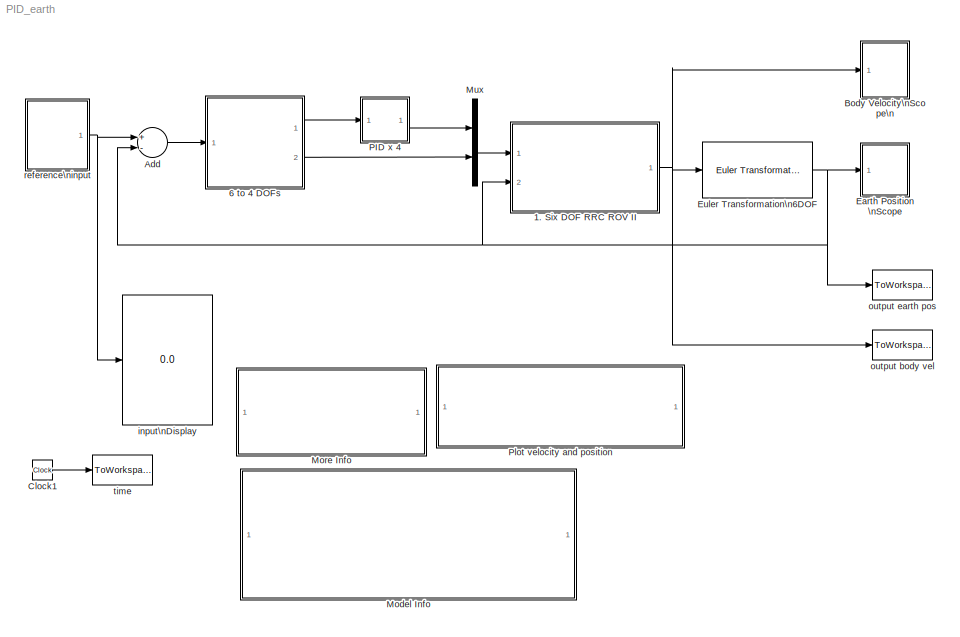
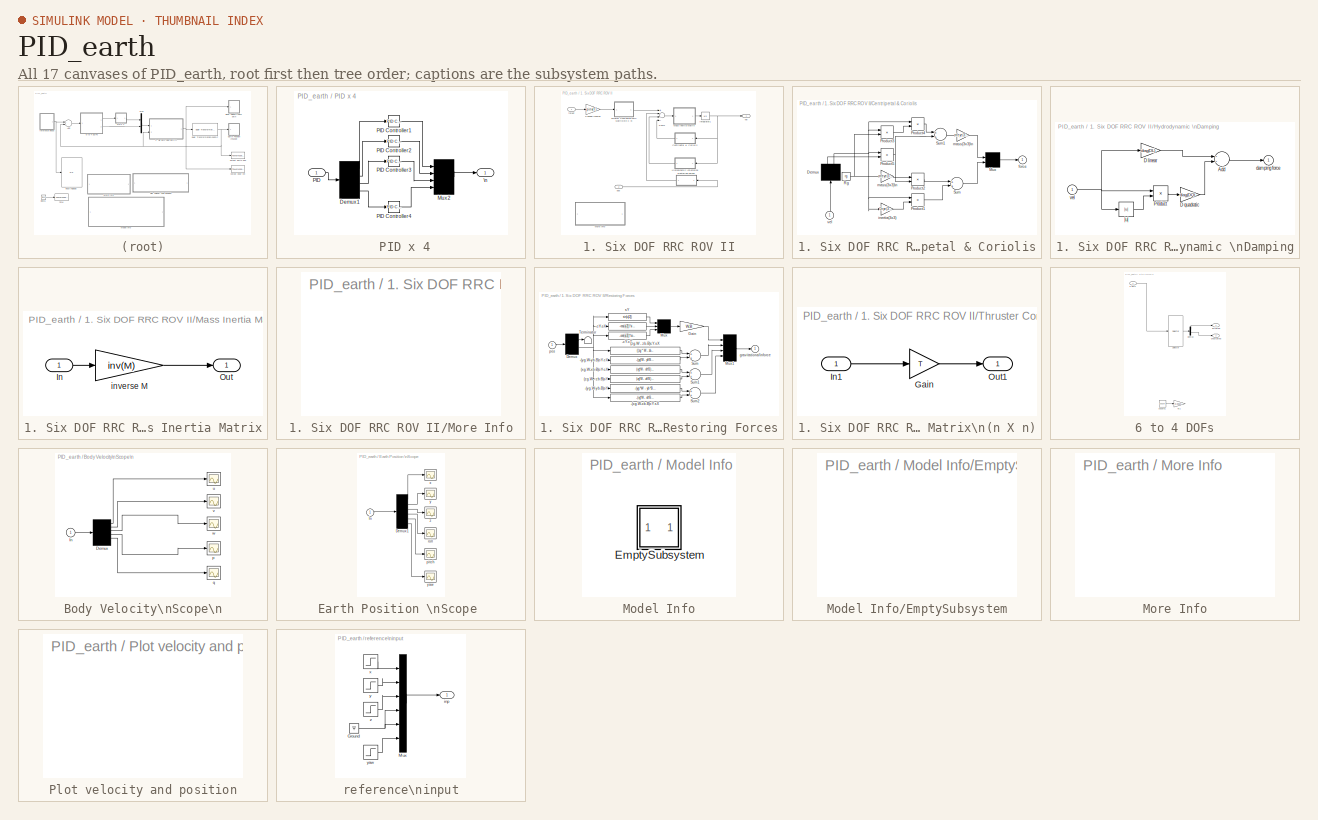
[diagram: thumbnail index - all 17 canvases of the model, root first then tree order]
MODEL PID_earth
KIND model
BLOCK [SubSystem]  PID x 4
  AncestorBlock = rov_design_analysis/ROV Controller\nDesign\nApplications/8. PID x 4
  MinAlgLoopOccurrences = off
  Ports = [1, 1]
  RTWSystemCode = Auto
  TreatAsAtomicUnit = off
BLOCK [Demux]  PID x 4/Demux1
  Ports = [1, 4]
BLOCK [Mux]  PID x 4/Mux2
  Ports = [4, 1]
BLOCK [Inport]  PID x 4/PID
  IconDisplay = Port number
  LatchInput = off
  Port = 1
BLOCK [Reference]  PID x 4/PID Controller1  REF=simulink_extras/Additional\nLinear/PID Controller
  D = 1
  I = 2
  P = 11
  Ports = [1, 1]
  ShowPortLabels = on
  SourceBlock = simulink_extras/Additional\nLinear/PID Controller
  SourceType = PID Controller
BLOCK [Reference]  PID x 4/PID Controller2  REF=simulink_extras/Additional\nLinear/PID Controller
  D = 1
  I = 4
  P = 11
  Ports = [1, 1]
  ShowPortLabels = on
  SourceBlock = simulink_extras/Additional\nLinear/PID Controller
  SourceType = PID Controller
BLOCK [Reference]  PID x 4/PID Controller3  REF=simulink_extras/Additional\nLinear/PID Controller
  D = 2
  I = 1
  P = 9
  Ports = [1, 1]
  ShowPortLabels = on
  SourceBlock = simulink_extras/Additional\nLinear/PID Controller
  SourceType = PID Controller
BLOCK [Reference]  PID x 4/PID Controller4  REF=simulink_extras/Additional\nLinear/PID Controller
  D = 1
  I = 2
  P = 1
  Ports = [1, 1]
  ShowPortLabels = on
  SourceBlock = simulink_extras/Additional\nLinear/PID Controller
  SourceType = PID Controller
BLOCK [Outport]  PID x 4/\n
  BusOutputAsStruct = off
  IconDisplay = Port number
BLOCK [SubSystem] 1. Six DOF RRC ROV II
  AncestorBlock = rov_design_analysis/ROV\nModels/1. Six DOF RRC ROV II
  MaskDisplay = disp('ROV')\nimage(imread('/rov_design_analysis/fig/ROVRRC2.jpg'));\ncolor('black');port_label('input',1,'thrust')\ncolor('black');port_label('input',2,'pos')\ncolor('black');port_label('output',1,'vel')
  MaskIconFrame = on
  MaskIconOpaque = off
  MaskIconRotate = none
  MaskIconUnits = autoscale
  MinAlgLoopOccurrences = off
  Ports = [2, 1]
  RTWSystemCode = Auto
  TreatAsAtomicUnit = off
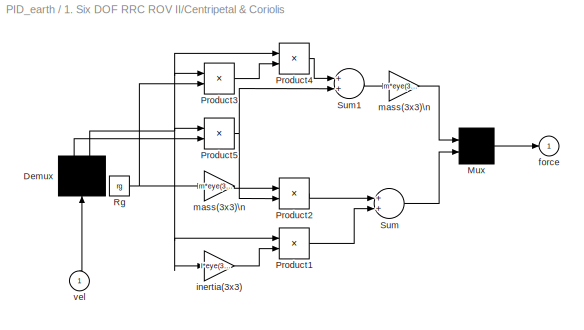
BLOCK [SubSystem] 1. Six DOF RRC ROV II/Centripetal & Coriolis
  MaskDisplay = disp('Coriolis \\n& Centrpetal \\nMatrix')
  MaskIconFrame = on
  MaskIconOpaque = on
  MaskIconRotate = none
  MaskIconUnits = autoscale
  MinAlgLoopOccurrences = off
  Ports = [1, 1]
  RTWSystemCode = Auto
  TreatAsAtomicUnit = off
BLOCK [Demux] 1. Six DOF RRC ROV II/Centripetal & Coriolis/Demux
  Outputs = 2
  Ports = [1, 2]
BLOCK [Mux] 1. Six DOF RRC ROV II/Centripetal & Coriolis/Mux
  Inputs = 2
  Ports = [2, 1]
BLOCK [Product] 1. Six DOF RRC ROV II/Centripetal & Coriolis/Product1
  Ports = [2, 1]
BLOCK [Product] 1. Six DOF RRC ROV II/Centripetal & Coriolis/Product2
  Ports = [2, 1]
BLOCK [Product] 1. Six DOF RRC ROV II/Centripetal & Coriolis/Product3
  Ports = [2, 1]
BLOCK [Product] 1. Six DOF RRC ROV II/Centripetal & Coriolis/Product4
  Ports = [2, 1]
BLOCK [Product] 1. Six DOF RRC ROV II/Centripetal & Coriolis/Product5
  Ports = [2, 1]
BLOCK [Constant] 1. Six DOF RRC ROV II/Centripetal & Coriolis/Rg
  Value = rg
BLOCK [Sum] 1. Six DOF RRC ROV II/Centripetal & Coriolis/Sum
  Ports = [2, 1]
BLOCK [Sum] 1. Six DOF RRC ROV II/Centripetal & Coriolis/Sum1
  Ports = [2, 1]
BLOCK [Outport] 1. Six DOF RRC ROV II/Centripetal & Coriolis/force
  BusOutputAsStruct = off
  IconDisplay = Port number
  InitialOutput = 0
BLOCK [Gain] 1. Six DOF RRC ROV II/Centripetal & Coriolis/inertia(3x3)
  Gain = I*eye(3)+[Xudot 0 0;0 Yvdot 0;0 0 Zwdot]
  Multiplication = Matrix(K*u)
BLOCK [Gain] 1. Six DOF RRC ROV II/Centripetal & Coriolis/mass(3x3)\n
  Gain = m*eye(3)+[Xudot 0 0;0 Yvdot 0;0 0 Zwdot]
  Multiplication = Matrix(K*u)
BLOCK [Gain] 1. Six DOF RRC ROV II/Centripetal & Coriolis/mass(3x3)\n  
  Gain = m*eye(3)+[Xudot 0 0;0 Yvdot 0;0 0 Zwdot]
  Multiplication = Matrix(K*u)
BLOCK [Inport] 1. Six DOF RRC ROV II/Centripetal & Coriolis/vel
  IconDisplay = Port number
  LatchInput = off
  Port = 1
BLOCK [SubSystem] 1. Six DOF RRC ROV II/Hydrodynamic \nDamping
  MaskDisplay = disp('Hydrodynamic \\nDamping')
  MaskIconFrame = on
  MaskIconOpaque = on
  MaskIconRotate = none
  MaskIconUnits = autoscale
  MinAlgLoopOccurrences = off
  Ports = [1, 1]
  RTWSystemCode = Auto
  TreatAsAtomicUnit = off
BLOCK [Sum] 1. Six DOF RRC ROV II/Hydrodynamic \nDamping/Add
  InputSameDT = off
  Inputs = --
  OutDataTypeMode = Inherit via internal rule
  OutScaling = 2^-10
  Ports = [2, 1]
  SaturateOnIntegerOverflow = off
BLOCK [Gain] 1. Six DOF RRC ROV II/Hydrodynamic \nDamping/D linear
  Gain = diag(DL)
BLOCK [Gain] 1. Six DOF RRC ROV II/Hydrodynamic \nDamping/D quadratic
  Gain = diag(DQ)
BLOCK [Product] 1. Six DOF RRC ROV II/Hydrodynamic \nDamping/Product
  Ports = [2, 1]
BLOCK [Outport] 1. Six DOF RRC ROV II/Hydrodynamic \nDamping/damping force
  BusOutputAsStruct = off
  IconDisplay = Port number
  InitialOutput = 0
BLOCK [Inport] 1. Six DOF RRC ROV II/Hydrodynamic \nDamping/vel
  IconDisplay = Port number
  LatchInput = off
  Port = 1
BLOCK [Abs] 1. Six DOF RRC ROV II/Hydrodynamic \nDamping/|u|
BLOCK [Integrator] 1. Six DOF RRC ROV II/Integrator1
  Ports = [1, 1]
BLOCK [SubSystem] 1. Six DOF RRC ROV II/Mass Inertia Matrix
  MaskDisplay = disp('Inverse Mass \\n Inertia \\n Matrix')
  MaskIconFrame = on
  MaskIconOpaque = on
  MaskIconRotate = none
  MaskIconUnits = autoscale
  MinAlgLoopOccurrences = off
  Ports = [1, 1]
  RTWSystemCode = Auto
  TreatAsAtomicUnit = off
BLOCK [Inport] 1. Six DOF RRC ROV II/Mass Inertia Matrix/In
  IconDisplay = Port number
  LatchInput = off
  Port = 1
BLOCK [Outport] 1. Six DOF RRC ROV II/Mass Inertia Matrix/Out
  BusOutputAsStruct = off
  IconDisplay = Port number
BLOCK [Gain] 1. Six DOF RRC ROV II/Mass Inertia Matrix/inverse M
  Gain = inv(M)
  Multiplication = Matrix(K*u)
BLOCK [SubSystem] 1. Six DOF RRC ROV II/More Info
  MaskDisplay = disp('Double-click here to load the\\n RRCROV2.mat')
  MaskIconFrame = on
  MaskIconOpaque = on
  MaskIconRotate = none
  MaskIconUnits = autoscale
  MinAlgLoopOccurrences = off
  OpenFcn = cd <path> ;\nload ROVRRC2;
  Ports = []
  RTWSystemCode = Auto
  TreatAsAtomicUnit = off
BLOCK [Gain] 1. Six DOF RRC ROV II/Pseudo Inverse
  Gain = pinv(T)
  Multiplication = Matrix(K*u)
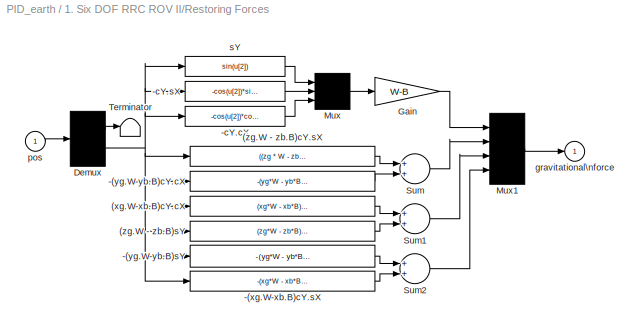
BLOCK [SubSystem] 1. Six DOF RRC ROV II/Restoring Forces
  MaskDisplay = disp('Restoring\\nForce')
  MaskIconFrame = on
  MaskIconOpaque = on
  MaskIconRotate = none
  MaskIconUnits = autoscale
  MinAlgLoopOccurrences = off
  Ports = [1, 1]
  RTWSystemCode = Auto
  TreatAsAtomicUnit = off
BLOCK [Fcn] 1. Six DOF RRC ROV II/Restoring Forces/(xg.W-xb.B)cY.cX
  Expr = (xg*W - xb*B)*cos(u[2])*cos(u[1])
BLOCK [Fcn] 1. Six DOF RRC ROV II/Restoring Forces/(zg.W - zb.B)cY.sX
  Expr = ((zg * W - zb * B) * cos(u[2])) * sin(u[1])
BLOCK [Fcn] 1. Six DOF RRC ROV II/Restoring Forces/(zg.W - zb.B)sY
  Expr = (zg*W - zb*B)*sin(u[2])
BLOCK [Fcn] 1. Six DOF RRC ROV II/Restoring Forces/-(xg.W-xb.B)cY.sX
  Expr = -(xg*W - xb*B)*cos(u[2])*sin(u[1])
BLOCK [Fcn] 1. Six DOF RRC ROV II/Restoring Forces/-(yg.W-yb.B)cY.cX
  Expr = -(yg*W - yb*B)*cos(u[2])*cos(u[1])
BLOCK [Fcn] 1. Six DOF RRC ROV II/Restoring Forces/-(yg.W-yb.B)sY
  Expr = -(yg*W - yb*B)*sin(u[2])
BLOCK [Fcn] 1. Six DOF RRC ROV II/Restoring Forces/-cY.cX
  Expr = -cos(u[2])*cos(u[1])
BLOCK [Fcn] 1. Six DOF RRC ROV II/Restoring Forces/-cY.sX
  Expr = -cos(u[2])*sin(u[1])
BLOCK [Demux] 1. Six DOF RRC ROV II/Restoring Forces/Demux
  Outputs = 2
  Ports = [1, 2]
BLOCK [Gain] 1. Six DOF RRC ROV II/Restoring Forces/Gain
  Gain = W-B
BLOCK [Mux] 1. Six DOF RRC ROV II/Restoring Forces/Mux
  Inputs = 3
  Ports = [3, 1]
BLOCK [Mux] 1. Six DOF RRC ROV II/Restoring Forces/Mux1
  Ports = [4, 1]
BLOCK [Sum] 1. Six DOF RRC ROV II/Restoring Forces/Sum
  Ports = [2, 1]
BLOCK [Sum] 1. Six DOF RRC ROV II/Restoring Forces/Sum1
  Ports = [2, 1]
BLOCK [Sum] 1. Six DOF RRC ROV II/Restoring Forces/Sum2
  Ports = [2, 1]
BLOCK [Terminator] 1. Six DOF RRC ROV II/Restoring Forces/Terminator
BLOCK [Outport] 1. Six DOF RRC ROV II/Restoring Forces/gravitational\nforce
  BusOutputAsStruct = off
  IconDisplay = Port number
  InitialOutput = 0
BLOCK [Inport] 1. Six DOF RRC ROV II/Restoring Forces/pos
  IconDisplay = Port number
  LatchInput = off
  Port = 1
BLOCK [Fcn] 1. Six DOF RRC ROV II/Restoring Forces/sY
  Expr = sin(u[2])
BLOCK [Sum] 1. Six DOF RRC ROV II/Sum1
  InputSameDT = off
  Inputs = +---
  OutDataTypeMode = double
  Ports = [4, 1]
BLOCK [SubSystem] 1. Six DOF RRC ROV II/Thruster Configuration\n Matrix\n(n X n)
  AncestorBlock = rov_design_analysis/ROV\nModels/4.  Thruster Configuration Matrix\n(n X n)
  MaskDescription = Provide the thruster configuration matrix using summation of forces and moment about the vehicle's C.G.
  MaskDisplay = disp('Thruster \\n Configuration')
  MaskEnableString = on
  MaskIconFrame = on
  MaskIconOpaque = on
  MaskIconRotate = none
  MaskIconUnits = autoscale
  MaskPromptString = Insert Thruster Configuration Matrix
  MaskStyleString = edit
  MaskToolTipString = on
  MaskTunableValueString = on
  MaskType = Thruster Configuration Matrix
  MaskValueString = T
  MaskVariables = T=@1;
  MaskVisibilityString = on
  MinAlgLoopOccurrences = off
  Ports = [1, 1]
  RTWSystemCode = Auto
  ShowPortLabels = off
  TreatAsAtomicUnit = off
BLOCK [Gain] 1. Six DOF RRC ROV II/Thruster Configuration\n Matrix\n(n X n)/Gain
  Gain = T
  Multiplication = Matrix(K*u)
  OutDataTypeMode = Inherit via internal rule
  ParameterDataTypeMode = Inherit via internal rule
  SaturateOnIntegerOverflow = off
BLOCK [Inport] 1. Six DOF RRC ROV II/Thruster Configuration\n Matrix\n(n X n)/In1
  IconDisplay = Port number
  LatchInput = off
  Port = 1
BLOCK [Outport] 1. Six DOF RRC ROV II/Thruster Configuration\n Matrix\n(n X n)/Out1
  BusOutputAsStruct = off
  IconDisplay = Port number
BLOCK [Inport] 1. Six DOF RRC ROV II/pos 
  IconDisplay = Port number
  LatchInput = off
  Port = 2
BLOCK [Inport] 1. Six DOF RRC ROV II/thrust 
  IconDisplay = Port number
  LatchInput = off
  Port = 1
BLOCK [Outport] 1. Six DOF RRC ROV II/vel
  BusOutputAsStruct = off
  IconDisplay = Port number
BLOCK [SubSystem] 6 to 4 DOFs
  AncestorBlock = rov_design_analysis/Scope\nUtilities/6 to 4 DOFs
  MinAlgLoopOccurrences = off
  Ports = [1, 2]
  RTWSystemCode = Auto
  TreatAsAtomicUnit = off
BLOCK [Inport] 6 to 4 DOFs/6 DOF
  IconDisplay = Port number
  LatchInput = off
  Port = 1
BLOCK [Demux] 6 to 4 DOFs/Demux
  DisplayOption = bar
  Outputs = 2
  Ports = [1, 2]
BLOCK [Gain] 6 to 4 DOFs/Kt1
  Gain = 0.0013
BLOCK [Selector] 6 to 4 DOFs/Selector
  Elements = [1 2 3 6 4 5]
  InputPortWidth = 6
  Ports = [1, 1]
BLOCK [Outport] 6 to 4 DOFs/actuated
  BusOutputAsStruct = off
  IconDisplay = Port number
BLOCK [Math] 6 to 4 DOFs/square1
  Operator = square
  Ports = [1, 1]
BLOCK [Outport] 6 to 4 DOFs/unactuated
  BusOutputAsStruct = off
  IconDisplay = Port number
  Port = 2
BLOCK [Sum] Add
  InputSameDT = off
  Inputs = +-
  OutDataTypeMode = Inherit via internal rule
  OutScaling = 2^-10
  Ports = [2, 1]
  SaturateOnIntegerOverflow = off
BLOCK [SubSystem] Body Velocity\nScope\n
  AncestorBlock = rov_design_analysis/Utilities/Body Velocity\nScope\n
  MaskDisplay = disp('Body\\nVelocity\\nScope')
  MaskIconFrame = on
  MaskIconOpaque = on
  MaskIconRotate = none
  MaskIconUnits = autoscale
  MinAlgLoopOccurrences = off
  Ports = [1]
  RTWSystemCode = Auto
  TreatAsAtomicUnit = off
BLOCK [Demux] Body Velocity\nScope\n/Demux
  Outputs = 6
  Ports = [1, 6]
BLOCK [Inport] Body Velocity\nScope\n/In
  IconDisplay = Port number
  LatchInput = off
  Port = 1
BLOCK [Scope] Body Velocity\nScope\n/p
  DataFormat = Array
  NumInputPorts = 1
  Ports = [1]
  TickLabels = on
  YMax = 0.2
  YMin = -0.125
BLOCK [Scope] Body Velocity\nScope\n/q
  DataFormat = Array
  NumInputPorts = 1
  Ports = [1]
  TickLabels = on
  TimeRange = 200
  YMax = 0.15
  YMin = -0.05
BLOCK [Scope] Body Velocity\nScope\n/u
  DataFormat = Array
  NumInputPorts = 1
  Ports = [1]
  TickLabels = on
  TimeRange = 50
  YMax = 0.375
  YMin = -0.025
BLOCK [Scope] Body Velocity\nScope\n/v
  DataFormat = Array
  NumInputPorts = 1
  Ports = [1]
  TickLabels = on
  YMax = 0.1
  YMin = -0.02
BLOCK [Scope] Body Velocity\nScope\n/w
  DataFormat = Array
  NumInputPorts = 1
  Ports = [1]
  TickLabels = on
  TimeRange = 50
  YMax = 0.0375
  YMin = -0.0025
  ZoomMode = yonly
BLOCK [Clock] Clock1
  Decimation = 10
BLOCK [SubSystem] Earth Position \nScope 
  AncestorBlock = rov_design_analysis/Utilities/Earth Position \nScope
  MaskDisplay = disp('Earth\\nPosition\\nScope')
  MaskIconFrame = on
  MaskIconOpaque = on
  MaskIconRotate = none
  MaskIconUnits = autoscale
  MinAlgLoopOccurrences = off
  Ports = [1]
  RTWSystemCode = Auto
  TreatAsAtomicUnit = off
BLOCK [Demux] Earth Position \nScope /Demux1
  Outputs = 6
  Ports = [1, 6]
BLOCK [Inport] Earth Position \nScope /In
  IconDisplay = Port number
  LatchInput = off
  Port = 1
BLOCK [Scope] Earth Position \nScope /pitch
  DataFormat = Array
  NumInputPorts = 1
  Ports = [1]
  TickLabels = on
  YMax = 0.15
  YMin = -0.05
BLOCK [Scope] Earth Position \nScope /roll
  DataFormat = Array
  NumInputPorts = 1
  Ports = [1]
  TickLabels = on
  YMax = 0.2
  YMin = -0.125
BLOCK [Scope] Earth Position \nScope /x
  DataFormat = Array
  NumInputPorts = 1
  Ports = [1]
  TickLabels = on
  TimeRange = 50
  YMax = 0.375
  YMin = 0
BLOCK [Scope] Earth Position \nScope /y
  DataFormat = Array
  NumInputPorts = 1
  Ports = [1]
  TickLabels = on
  YMax = 0.175
  YMin = -0.15
BLOCK [Scope] Earth Position \nScope /yaw
  DataFormat = Array
  NumInputPorts = 1
  Ports = [1]
  TickLabels = on
  YMax = 1.75
  YMin = 0
BLOCK [Scope] Earth Position \nScope /z
  DataFormat = Array
  NumInputPorts = 1
  Ports = [1]
  TickLabels = on
  TimeRange = 50
  YMax = 0.0375
  YMin = -0.0025
  ZoomMode = yonly
BLOCK [Reference] Euler Transformation\n6DOF  REF=rov_design_analysis/Utilities/Euler Transformation\n6DOF
  Ports = [1, 1]
  ShowPortLabels = on
  SourceBlock = rov_design_analysis/Utilities/Euler Transformation\n6DOF
  SourceType = SubSystem
BLOCK [SubSystem] Model Info
  CopyFcn = slcm CopyBlock;
  DeleteFcn = slcm Cancel;
  InitFcn = slcm('UpdateAllCMBlocksInThisModelInit')
  LoadFcn = slcm LoadBlock;
  MaskCallbackString = ||||||||||||||||||||||||||||||
  MaskDescription = This block allows revision control information to be displayed within the model.
  MaskDisplay = text(str2num(LeftAlignmentValue), 0.5, MaskDisplayString, 'HorizontalAlignment', HorizontalTextAlignment)\n
  MaskEnableString = on,on,on,on,on,on,on,on,on,on,on,on,on,on,on,on,on,on,on,on,on,on,on,on,on,on,on,on,on,on,on
  MaskIconFrame = on
  MaskIconOpaque = on
  MaskIconRotate = none
  MaskIconUnits = normalized
  MaskPromptString = InitialSaveTempField|InitialBlockCM|BlockCM|Frame|SaveTempField|DisplayStringWithTags|MaskDisplayString|HorizontalTextAlignment|LeftAlignmentValue|SourceBlockDiagram|TagMaxNumber|CMTag1|CMTag2|CMTag3|CMTag4|CMTag5|CMTag6|CMTag7|CMTag8|CMTag9|CMTag10|CMTag11|CMTag12|CMTag13|CMTag14|CMTag15|CMTag16|CMTag17|CMTag18|CMTag19|CMTag20
  MaskSelfModifiable = on
  MaskStyleString = edit,edit,edit,edit,edit,edit,edit,edit,edit,edit,edit,edit,edit,edit,edit,edit,edit,edit,edit,edit,edit,edit,edit,edit,edit,edit,edit,edit,edit,edit,edit
  MaskTabNameString = ,,,,,,,,,,,,,,,,,,,,,,,,,,,,,,
  MaskToolTipString = on,on,on,on,on,on,on,on,on,on,on,on,on,on,on,on,on,on,on,on,on,on,on,on,on,on,on,on,on,on,on
  MaskTunableValueString = on,on,on,on,on,on,on,on,on,on,on,on,on,on,on,on,on,on,on,on,on,on,on,on,on,on,on,on,on,on,on
  MaskType = CMBlock
  MaskValueString = |None|None|on||Reference:\\n\nRobust controller design method and stability\nanalysis of an underactuated underwater vehicle, \\n\nInternational Journal of Applied Mathematics and \\n Computer Science, Vol 16, No. 3, p101-112, Dec 2006.\\n\n%<Creator>Author: C.S. Chin et. al.\n%<LastModificationDate>|Reference:\\n\\nRobust controller design method and stability\\nanalysis of an underactuated under...<+223ch>
  MaskVarAliasString = ,,,,,,,,,,,,,,,,,,,,,,,,,,,,,,
  MaskVariables = InitialSaveTempField=&1;InitialBlockCM=&2;BlockCM=&3;Frame=&4;SaveTempField=&5;DisplayStringWithTags=&6;MaskDisplayString=&7;HorizontalTextAlignment=&8;LeftAlignmentValue=&9;SourceBlockDiagram=&10;TagMaxNumber=@11;CMTag1=&12;CMTag2=&13;CMTag3=&14;CMTag4=&15;CMTag5=&16;CMTag6=&17;CMTag7=&18;CMTag8=&19;CMTag9=&20;CMTag10=&21;CMTag11=&22;CMTag12=&23;CMTag13=&24;CMTag14=&25;CMTag15=&26;CMTag16=&27;CMT...<+45ch>
  MaskVisibilityString = off,off,off,off,off,off,off,off,off,off,off,off,off,off,off,off,off,off,off,off,off,off,off,off,off,off,off,off,off,off,off
  MinAlgLoopOccurrences = off
  NameChangeFcn = slcm Rename;
  OpenFcn = slcm
  Ports = []
  PostSaveFcn = slcm('UpdateAllCMBlocksInThisModel')
  RTWSystemCode = Auto
  TreatAsAtomicUnit = off
BLOCK [SubSystem] Model Info/EmptySubsystem
  MinAlgLoopOccurrences = off
  Ports = []
  RTWSystemCode = Auto
  TreatAsAtomicUnit = off
BLOCK [SubSystem] More Info
  MaskDisplay = disp('Double-click here \\n to \\n load parameters')
  MaskIconFrame = on
  MaskIconOpaque = on
  MaskIconRotate = none
  MaskIconUnits = autoscale
  MinAlgLoopOccurrences = off
  OpenFcn = cd <path> ;                      \nload rrcrovf;                                                              \nkp1=11;ki1=2;kd1=1; kp2=11;ki2=4;kd2=1;kp3=9;ki3=1;kd3=2;kp4=1;ki4=2;kd4=1;
  Ports = []
  RTWSystemCode = Auto
  TreatAsAtomicUnit = off
BLOCK [Mux] Mux
  DisplayOption = bar
  Inputs = 2
  Ports = [2, 1]
BLOCK [SubSystem] Plot velocity and position
  MaskDisplay = disp('Double-click \\n to \\n Plot Velocity \\n and \\n Position')
  MaskIconFrame = on
  MaskIconOpaque = on
  MaskIconRotate = none
  MaskIconUnits = autoscale
  MinAlgLoopOccurrences = off
  OpenFcn = clc                                                \ncd <path> ;\nrun nonlin_resp6
  Ports = []
  RTWSystemCode = Auto
  TreatAsAtomicUnit = off
BLOCK [Display] input\nDisplay
  Decimation = 1
  Ports = [1]
BLOCK [ToWorkspace] output body vel
  MaxDataPoints = inf
  SampleTime = 1
  SaveFormat = Array
  VariableName = bout1
BLOCK [ToWorkspace] output earth pos
  MaxDataPoints = inf
  SampleTime = 1
  SaveFormat = Array
  VariableName = eout1
BLOCK [SubSystem] reference\ninput
  AncestorBlock = rov_design_analysis/Scope\nUtilities/pipe tracking\nprofile \n(Manual)
  MinAlgLoopOccurrences = off
  Ports = [0, 1]
  RTWSystemCode = Auto
  TreatAsAtomicUnit = off
BLOCK [Ground] reference\ninput/Ground
BLOCK [Mux] reference\ninput/Mux
  Inputs = 6
  Ports = [6, 1]
BLOCK [Outport] reference\ninput/inp
  BusOutputAsStruct = off
  IconDisplay = Port number
BLOCK [Step] reference\ninput/x
  After = 0.5
  SampleTime = 0
  Time = 0
BLOCK [Step] reference\ninput/y
  After = 0
  SampleTime = 0
  Time = 0
BLOCK [Step] reference\ninput/yaw
  After = 0
  SampleTime = 0
  Time = 0
BLOCK [Step] reference\ninput/z
  SampleTime = 0
  Time = 0
BLOCK [ToWorkspace] time
  MaxDataPoints = inf
  SampleTime = 1
  SaveFormat = Array
  VariableName = t
LINE  PID x 4/Demux1:1 ->  PID x 4/PID Controller1:1
LINE  PID x 4/Demux1:2 ->  PID x 4/PID Controller2:1
LINE  PID x 4/Demux1:3 ->  PID x 4/PID Controller3:1
LINE  PID x 4/Demux1:4 ->  PID x 4/PID Controller4:1
LINE  PID x 4/Mux2:1 ->  PID x 4/\n:1
LINE  PID x 4/PID Controller1:1 ->  PID x 4/Mux2:1
LINE  PID x 4/PID Controller2:1 ->  PID x 4/Mux2:2
LINE  PID x 4/PID Controller3:1 ->  PID x 4/Mux2:3
LINE  PID x 4/PID Controller4:1 ->  PID x 4/Mux2:4
LINE  PID x 4/PID:1 ->  PID x 4/Demux1:1
LINE  PID x 4:1 -> Mux:1
LINE 1. Six DOF RRC ROV II/Centripetal & Coriolis/Demux:1 -> 1. Six DOF RRC ROV II/Centripetal & Coriolis/Product5:2
NET 1. Six DOF RRC ROV II/Centripetal & Coriolis/Demux:2 -> 1. Six DOF RRC ROV II/Centripetal & Coriolis/Product1:1, 1. Six DOF RRC ROV II/Centripetal & Coriolis/Product3:1, 1. Six DOF RRC ROV II/Centripetal & Coriolis/Product4:1, 1. Six DOF RRC ROV II/Centripetal & Coriolis/Product5:1, 1. Six DOF RRC ROV II/Centripetal & Coriolis/inertia(3x3):1
LINE 1. Six DOF RRC ROV II/Centripetal & Coriolis/Mux:1 -> 1. Six DOF RRC ROV II/Centripetal & Coriolis/force:1
LINE 1. Six DOF RRC ROV II/Centripetal & Coriolis/Product1:1 -> 1. Six DOF RRC ROV II/Centripetal & Coriolis/Sum:2
LINE 1. Six DOF RRC ROV II/Centripetal & Coriolis/Product2:1 -> 1. Six DOF RRC ROV II/Centripetal & Coriolis/Sum:1
LINE 1. Six DOF RRC ROV II/Centripetal & Coriolis/Product3:1 -> 1. Six DOF RRC ROV II/Centripetal & Coriolis/Product4:2
LINE 1. Six DOF RRC ROV II/Centripetal & Coriolis/Product4:1 -> 1. Six DOF RRC ROV II/Centripetal & Coriolis/Sum1:1
NET 1. Six DOF RRC ROV II/Centripetal & Coriolis/Product5:1 -> 1. Six DOF RRC ROV II/Centripetal & Coriolis/Product2:2, 1. Six DOF RRC ROV II/Centripetal & Coriolis/Sum1:2
NET 1. Six DOF RRC ROV II/Centripetal & Coriolis/Rg:1 -> 1. Six DOF RRC ROV II/Centripetal & Coriolis/Product3:2, 1. Six DOF RRC ROV II/Centripetal & Coriolis/mass(3x3)\n  :1
LINE 1. Six DOF RRC ROV II/Centripetal & Coriolis/Sum1:1 -> 1. Six DOF RRC ROV II/Centripetal & Coriolis/mass(3x3)\n:1
LINE 1. Six DOF RRC ROV II/Centripetal & Coriolis/Sum:1 -> 1. Six DOF RRC ROV II/Centripetal & Coriolis/Mux:2
LINE 1. Six DOF RRC ROV II/Centripetal & Coriolis/inertia(3x3):1 -> 1. Six DOF RRC ROV II/Centripetal & Coriolis/Product1:2
LINE 1. Six DOF RRC ROV II/Centripetal & Coriolis/mass(3x3)\n  :1 -> 1. Six DOF RRC ROV II/Centripetal & Coriolis/Product2:1
LINE 1. Six DOF RRC ROV II/Centripetal & Coriolis/mass(3x3)\n:1 -> 1. Six DOF RRC ROV II/Centripetal & Coriolis/Mux:1
LINE 1. Six DOF RRC ROV II/Centripetal & Coriolis/vel:1 -> 1. Six DOF RRC ROV II/Centripetal & Coriolis/Demux:1
LINE 1. Six DOF RRC ROV II/Centripetal & Coriolis:1 -> 1. Six DOF RRC ROV II/Sum1:4
LINE 1. Six DOF RRC ROV II/Hydrodynamic \nDamping/Add:1 -> 1. Six DOF RRC ROV II/Hydrodynamic \nDamping/damping force:1
LINE 1. Six DOF RRC ROV II/Hydrodynamic \nDamping/D linear:1 -> 1. Six DOF RRC ROV II/Hydrodynamic \nDamping/Add:1
LINE 1. Six DOF RRC ROV II/Hydrodynamic \nDamping/D quadratic:1 -> 1. Six DOF RRC ROV II/Hydrodynamic \nDamping/Add:2
LINE 1. Six DOF RRC ROV II/Hydrodynamic \nDamping/Product:1 -> 1. Six DOF RRC ROV II/Hydrodynamic \nDamping/D quadratic:1
NET 1. Six DOF RRC ROV II/Hydrodynamic \nDamping/vel:1 -> 1. Six DOF RRC ROV II/Hydrodynamic \nDamping/D linear:1, 1. Six DOF RRC ROV II/Hydrodynamic \nDamping/Product:1, 1. Six DOF RRC ROV II/Hydrodynamic \nDamping/|u|:1
LINE 1. Six DOF RRC ROV II/Hydrodynamic \nDamping/|u|:1 -> 1. Six DOF RRC ROV II/Hydrodynamic \nDamping/Product:2
LINE 1. Six DOF RRC ROV II/Hydrodynamic \nDamping:1 -> 1. Six DOF RRC ROV II/Sum1:3
NET 1. Six DOF RRC ROV II/Integrator1:1 -> 1. Six DOF RRC ROV II/Centripetal & Coriolis:1, 1. Six DOF RRC ROV II/Hydrodynamic \nDamping:1, 1. Six DOF RRC ROV II/vel:1
LINE 1. Six DOF RRC ROV II/Mass Inertia Matrix/In:1 -> 1. Six DOF RRC ROV II/Mass Inertia Matrix/inverse M:1
LINE 1. Six DOF RRC ROV II/Mass Inertia Matrix/inverse M:1 -> 1. Six DOF RRC ROV II/Mass Inertia Matrix/Out:1
LINE 1. Six DOF RRC ROV II/Mass Inertia Matrix:1 -> 1. Six DOF RRC ROV II/Integrator1:1
LINE 1. Six DOF RRC ROV II/Pseudo Inverse:1 -> 1. Six DOF RRC ROV II/Thruster Configuration\n Matrix\n(n X n):1
LINE 1. Six DOF RRC ROV II/Restoring Forces/(xg.W-xb.B)cY.cX:1 -> 1. Six DOF RRC ROV II/Restoring Forces/Sum1:1
LINE 1. Six DOF RRC ROV II/Restoring Forces/(zg.W - zb.B)cY.sX:1 -> 1. Six DOF RRC ROV II/Restoring Forces/Sum:1
LINE 1. Six DOF RRC ROV II/Restoring Forces/(zg.W - zb.B)sY:1 -> 1. Six DOF RRC ROV II/Restoring Forces/Sum1:2
LINE 1. Six DOF RRC ROV II/Restoring Forces/-(xg.W-xb.B)cY.sX:1 -> 1. Six DOF RRC ROV II/Restoring Forces/Sum2:2
LINE 1. Six DOF RRC ROV II/Restoring Forces/-(yg.W-yb.B)cY.cX:1 -> 1. Six DOF RRC ROV II/Restoring Forces/Sum:2
LINE 1. Six DOF RRC ROV II/Restoring Forces/-(yg.W-yb.B)sY:1 -> 1. Six DOF RRC ROV II/Restoring Forces/Sum2:1
LINE 1. Six DOF RRC ROV II/Restoring Forces/-cY.cX:1 -> 1. Six DOF RRC ROV II/Restoring Forces/Mux:3
LINE 1. Six DOF RRC ROV II/Restoring Forces/-cY.sX:1 -> 1. Six DOF RRC ROV II/Restoring Forces/Mux:2
LINE 1. Six DOF RRC ROV II/Restoring Forces/Demux:1 -> 1. Six DOF RRC ROV II/Restoring Forces/Terminator:1
NET 1. Six DOF RRC ROV II/Restoring Forces/Demux:2 -> 1. Six DOF RRC ROV II/Restoring Forces/(xg.W-xb.B)cY.cX:1, 1. Six DOF RRC ROV II/Restoring Forces/(zg.W - zb.B)cY.sX:1, 1. Six DOF RRC ROV II/Restoring Forces/(zg.W - zb.B)sY:1, 1. Six DOF RRC ROV II/Restoring Forces/-(xg.W-xb.B)cY.sX:1, 1. Six DOF RRC ROV II/Restoring Forces/-(yg.W-yb.B)cY.cX:1, 1. Six DOF RRC ROV II/Restoring Forces/-(yg.W-yb.B)sY:1, 1. Six DOF RRC ROV II/Restoring Forces/-cY.cX:1, 1. Six DOF RRC ROV II/Restoring Forces/-cY.sX:1, 1. Six DOF RRC ROV II/Restoring Forces/sY:1
LINE 1. Six DOF RRC ROV II/Restoring Forces/Gain:1 -> 1. Six DOF RRC ROV II/Restoring Forces/Mux1:1
LINE 1. Six DOF RRC ROV II/Restoring Forces/Mux1:1 -> 1. Six DOF RRC ROV II/Restoring Forces/gravitational\nforce:1
LINE 1. Six DOF RRC ROV II/Restoring Forces/Mux:1 -> 1. Six DOF RRC ROV II/Restoring Forces/Gain:1
LINE 1. Six DOF RRC ROV II/Restoring Forces/Sum1:1 -> 1. Six DOF RRC ROV II/Restoring Forces/Mux1:3
LINE 1. Six DOF RRC ROV II/Restoring Forces/Sum2:1 -> 1. Six DOF RRC ROV II/Restoring Forces/Mux1:4
LINE 1. Six DOF RRC ROV II/Restoring Forces/Sum:1 -> 1. Six DOF RRC ROV II/Restoring Forces/Mux1:2
LINE 1. Six DOF RRC ROV II/Restoring Forces/pos:1 -> 1. Six DOF RRC ROV II/Restoring Forces/Demux:1
LINE 1. Six DOF RRC ROV II/Restoring Forces/sY:1 -> 1. Six DOF RRC ROV II/Restoring Forces/Mux:1
LINE 1. Six DOF RRC ROV II/Restoring Forces:1 -> 1. Six DOF RRC ROV II/Sum1:2
LINE 1. Six DOF RRC ROV II/Sum1:1 -> 1. Six DOF RRC ROV II/Mass Inertia Matrix:1
LINE 1. Six DOF RRC ROV II/Thruster Configuration\n Matrix\n(n X n)/Gain:1 -> 1. Six DOF RRC ROV II/Thruster Configuration\n Matrix\n(n X n)/Out1:1
LINE 1. Six DOF RRC ROV II/Thruster Configuration\n Matrix\n(n X n)/In1:1 -> 1. Six DOF RRC ROV II/Thruster Configuration\n Matrix\n(n X n)/Gain:1
LINE 1. Six DOF RRC ROV II/Thruster Configuration\n Matrix\n(n X n):1 -> 1. Six DOF RRC ROV II/Sum1:1
LINE 1. Six DOF RRC ROV II/pos :1 -> 1. Six DOF RRC ROV II/Restoring Forces:1
LINE 1. Six DOF RRC ROV II/thrust :1 -> 1. Six DOF RRC ROV II/Pseudo Inverse:1
NET 1. Six DOF RRC ROV II:1 -> Body Velocity\nScope\n:1, Euler Transformation\n6DOF:1, output body vel:1
LINE 6 to 4 DOFs/6 DOF:1 -> 6 to 4 DOFs/Selector:1
LINE 6 to 4 DOFs/Demux:1 -> 6 to 4 DOFs/actuated:1
LINE 6 to 4 DOFs/Demux:2 -> 6 to 4 DOFs/unactuated:1
LINE 6 to 4 DOFs/Selector:1 -> 6 to 4 DOFs/Demux:1
LINE 6 to 4 DOFs/square1:1 -> 6 to 4 DOFs/Kt1:1
LINE 6 to 4 DOFs:1 ->  PID x 4:1
LINE 6 to 4 DOFs:2 -> Mux:2
LINE Add:1 -> 6 to 4 DOFs:1
LINE Body Velocity\nScope\n/Demux:1 -> Body Velocity\nScope\n/u:1
LINE Body Velocity\nScope\n/Demux:2 -> Body Velocity\nScope\n/v:1
LINE Body Velocity\nScope\n/Demux:3 -> Body Velocity\nScope\n/w:1
LINE Body Velocity\nScope\n/Demux:4 -> Body Velocity\nScope\n/p:1
LINE Body Velocity\nScope\n/Demux:5 -> Body Velocity\nScope\n/q:1
LINE Body Velocity\nScope\n/In:1 -> Body Velocity\nScope\n/Demux:1
LINE Clock1:1 -> time:1
LINE Earth Position \nScope /Demux1:1 -> Earth Position \nScope /x:1
LINE Earth Position \nScope /Demux1:2 -> Earth Position \nScope /y:1
LINE Earth Position \nScope /Demux1:3 -> Earth Position \nScope /z:1
LINE Earth Position \nScope /Demux1:4 -> Earth Position \nScope /roll:1
LINE Earth Position \nScope /Demux1:5 -> Earth Position \nScope /pitch:1
LINE Earth Position \nScope /Demux1:6 -> Earth Position \nScope /yaw:1
LINE Earth Position \nScope /In:1 -> Earth Position \nScope /Demux1:1
NET Euler Transformation\n6DOF:1 -> 1. Six DOF RRC ROV II:2, Add:2, Earth Position \nScope :1, output earth pos:1
LINE Mux:1 -> 1. Six DOF RRC ROV II:1
NET reference\ninput/Ground:1 -> reference\ninput/Mux:4, reference\ninput/Mux:5
LINE reference\ninput/Mux:1 -> reference\ninput/inp:1
LINE reference\ninput/x:1 -> reference\ninput/Mux:1
LINE reference\ninput/y:1 -> reference\ninput/Mux:2
LINE reference\ninput/yaw:1 -> reference\ninput/Mux:6
LINE reference\ninput/z:1 -> reference\ninput/Mux:3
NET reference\ninput:1 -> Add:1, input\nDisplay:1
note: NET lines group one-source signal fan-out (src -> all destinations, sorted); 1:1 wires keep LINE
note: 3 file-system paths scrubbed to <path> (not preserved elsewhere — flat text is the only slx artifact)
